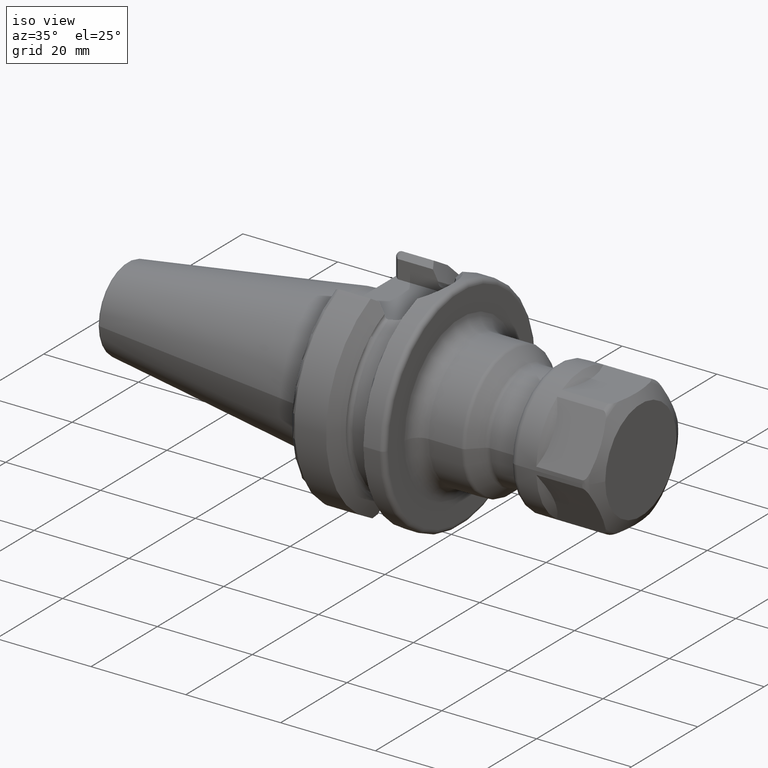
[diagram: clean part render]
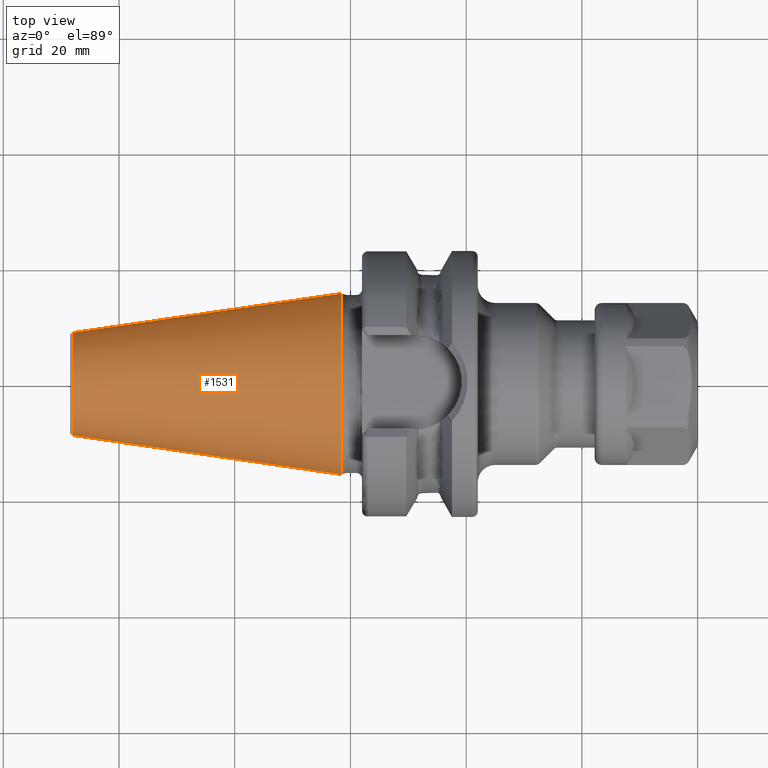
[diagram: tour spotlight — one face highlighted and labeled with its STEP entity id]
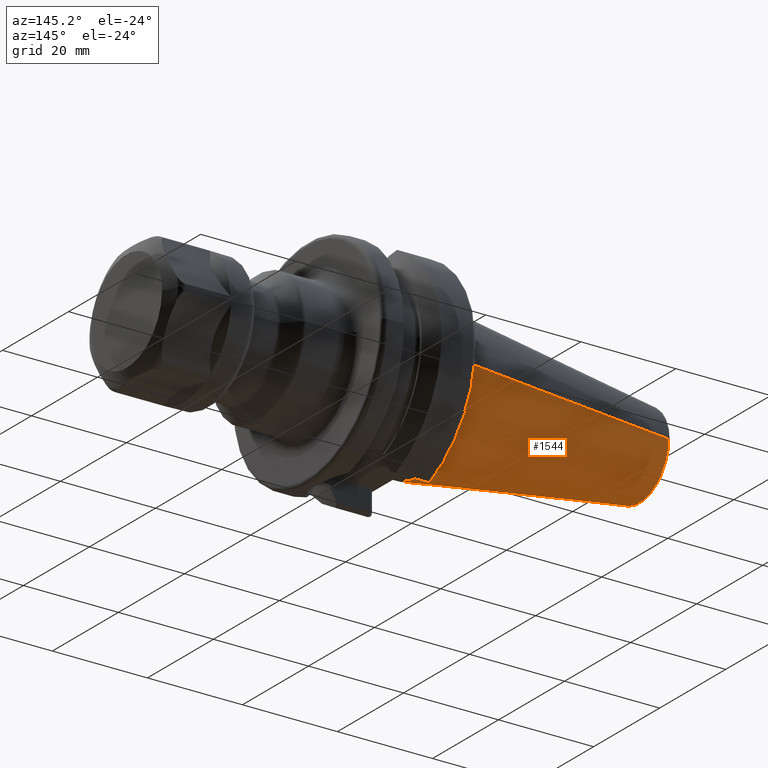
[diagram: tour spotlight — one face highlighted and labeled with its STEP entity id]
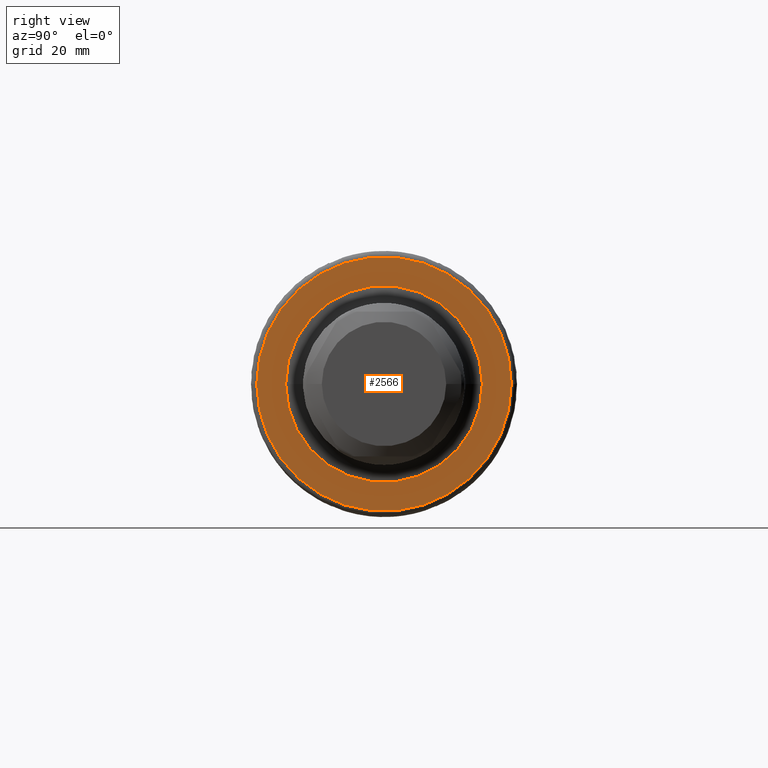
[diagram: tour spotlight — one face highlighted and labeled with its STEP entity id]
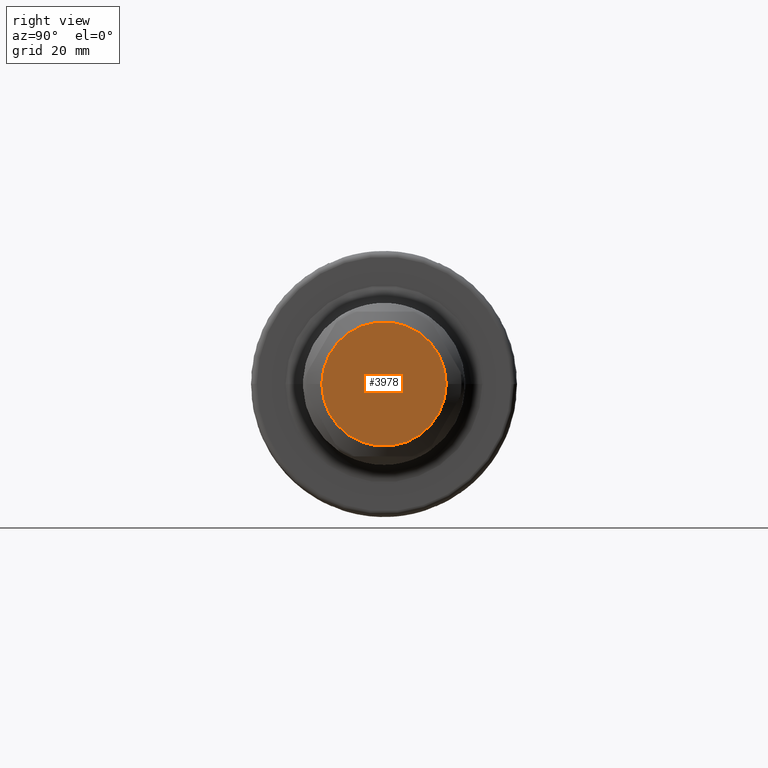
[diagram: tour spotlight — one face highlighted and labeled with its STEP entity id]
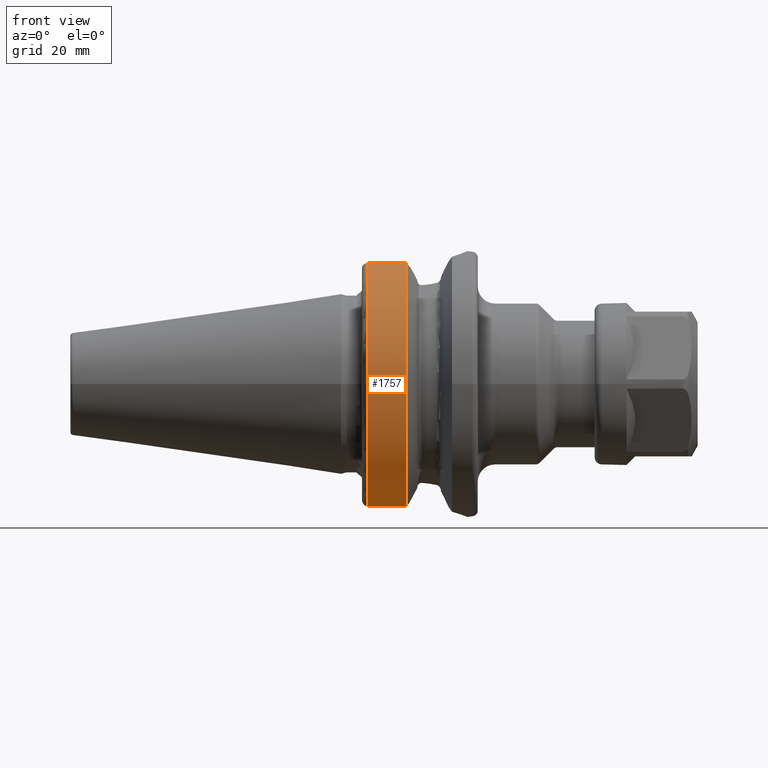
[diagram: tour spotlight — one face highlighted and labeled with its STEP entity id]
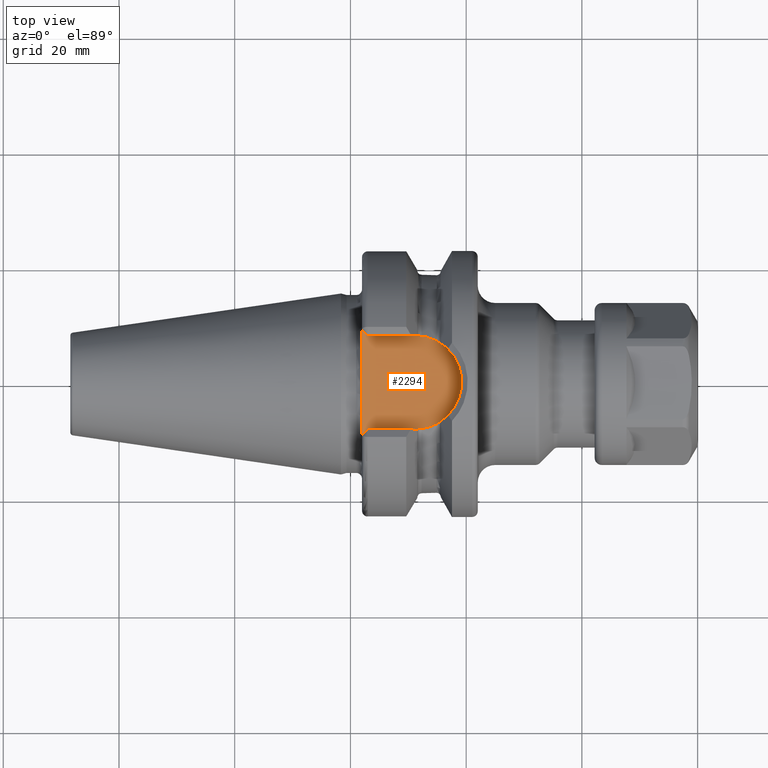
[diagram: tour spotlight — one face highlighted and labeled with its STEP entity id]
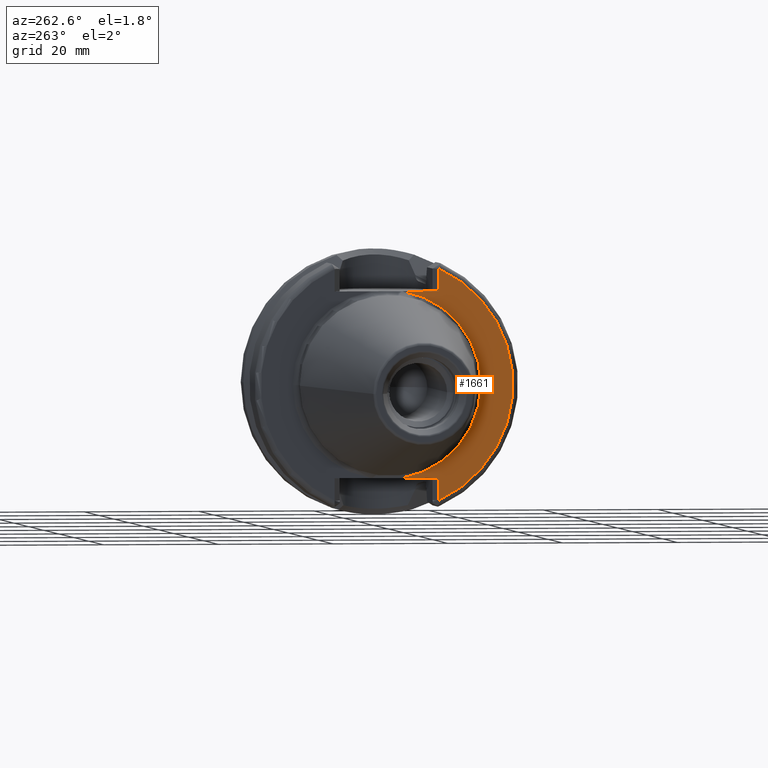
[diagram: tour spotlight — one face highlighted and labeled with its STEP entity id]
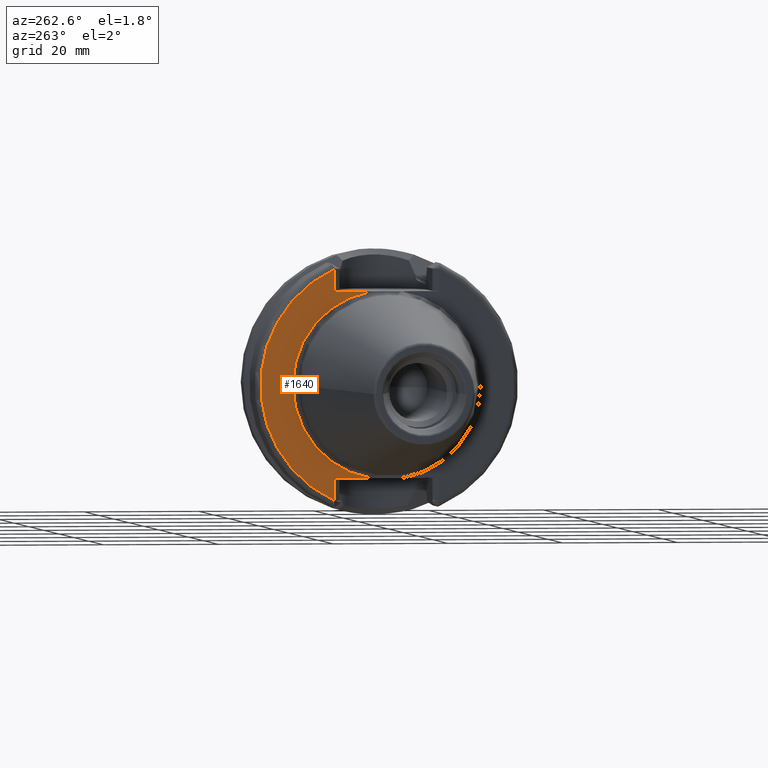
[diagram: tour spotlight — one face highlighted and labeled with its STEP entity id]
A machine part: a face-by-face anatomy tour. The part has 128 B-rep faces; the first image is the clean iso view, then the 8 largest visible faces are spotlighted one at a time (largest first), each with its STEP entity span.

Face 1 — top view, entity #1531. In plain terms, the highlighted conical surface has half-angle 8.298 deg.
Definition (entity closure, byte-faithful):
#37=CARTESIAN_POINT('',(-4.797215933459E1,0.E0,0.E0));
#38=DIRECTION('',(1.E0,0.E0,0.E0));
#39=DIRECTION('',(0.E0,1.E0,0.E0));
#40=AXIS2_PLACEMENT_3D('',#37,#38,#39);
#42=CARTESIAN_POINT('',(-1.629230650827E0,0.E0,0.E0));
#43=DIRECTION('',(1.E0,0.E0,0.E0));
#44=DIRECTION('',(0.E0,1.E0,0.E0));
#45=AXIS2_PLACEMENT_3D('',#42,#43,#44);
#47=DIRECTION('',(-9.895312636440E-1,-1.443186691705E-1,0.E0));
#48=VECTOR('',#47,4.683321324594E1);
#49=CARTESIAN_POINT('',(-1.629230650827E0,1.563738406209E1,0.E0));
#50=LINE('',#49,#48);
#51=DIRECTION('',(-9.895312636440E-1,1.443186691705E-1,0.E0));
#52=VECTOR('',#51,4.683321324594E1);
#53=CARTESIAN_POINT('',(-1.629230650827E0,-1.563738406209E1,0.E0));
#54=LINE('',#53,#52);
#1212=CARTESIAN_POINT('',(-4.797215933459E1,8.878477053461E0,0.E0));
#1214=VERTEX_POINT('',#1212);
#1216=CARTESIAN_POINT('',(-4.797215933459E1,-8.878477053461E0,0.E0));
#1218=VERTEX_POINT('',#1216);
#1427=CARTESIAN_POINT('',(-1.629230650827E0,1.563738406209E1,0.E0));
#1428=VERTEX_POINT('',#1427);
#1429=CARTESIAN_POINT('',(-1.629230650827E0,-1.563738406209E1,0.E0));
#1430=VERTEX_POINT('',#1429);
#1517=CARTESIAN_POINT('',(-2.480069499271E1,0.E0,0.E0));
#1518=DIRECTION('',(1.E0,0.E0,0.E0));
#1519=DIRECTION('',(0.E0,-1.E0,0.E0));
#1520=AXIS2_PLACEMENT_3D('',#1517,#1518,#1519);
#1521=CONICAL_SURFACE('',#1520,1.225793055778E1,8.297826828206E0);
#1523=ORIENTED_EDGE('',*,*,#1522,.F.);
#1525=ORIENTED_EDGE('',*,*,#1524,.T.);
#1527=ORIENTED_EDGE('',*,*,#1526,.T.);
#1528=ORIENTED_EDGE('',*,*,#1510,.F.);
#1529=EDGE_LOOP('',(#1523,#1525,#1527,#1528));
#1530=FACE_OUTER_BOUND('',#1529,.F.);
#1531=ADVANCED_FACE('',(#1530),#1521,.T.);
#41=CIRCLE('',#40,8.878477053461E0);
#46=CIRCLE('',#45,1.563738406209E1);
#1510=EDGE_CURVE('',#1214,#1218,#41,.T.);
#1522=EDGE_CURVE('',#1428,#1214,#50,.T.);
#1524=EDGE_CURVE('',#1428,#1430,#46,.T.);
#1526=EDGE_CURVE('',#1430,#1218,#54,.T.);

Face 2 — auxiliary view, entity #1544. In plain terms, the highlighted conical surface has half-angle 8.298 deg.
Definition (entity closure, byte-faithful):
#32=CARTESIAN_POINT('',(-4.797215933459E1,0.E0,0.E0));
#33=DIRECTION('',(-1.E0,0.E0,0.E0));
#34=DIRECTION('',(0.E0,1.E0,0.E0));
#35=AXIS2_PLACEMENT_3D('',#32,#33,#34);
#47=DIRECTION('',(-9.895312636440E-1,-1.443186691705E-1,0.E0));
#48=VECTOR('',#47,4.683321324594E1);
#49=CARTESIAN_POINT('',(-1.629230650827E0,1.563738406209E1,0.E0));
#50=LINE('',#49,#48);
#51=DIRECTION('',(-9.895312636440E-1,1.443186691705E-1,0.E0));
#52=VECTOR('',#51,4.683321324594E1);
#53=CARTESIAN_POINT('',(-1.629230650827E0,-1.563738406209E1,0.E0));
#54=LINE('',#53,#52);
#55=CARTESIAN_POINT('',(-1.629230650827E0,0.E0,0.E0));
#56=DIRECTION('',(-1.E0,0.E0,0.E0));
#57=DIRECTION('',(0.E0,1.E0,0.E0));
#58=AXIS2_PLACEMENT_3D('',#55,#56,#57);
#1212=CARTESIAN_POINT('',(-4.797215933459E1,8.878477053461E0,0.E0));
#1214=VERTEX_POINT('',#1212);
#1216=CARTESIAN_POINT('',(-4.797215933459E1,-8.878477053461E0,0.E0));
#1218=VERTEX_POINT('',#1216);
#1427=CARTESIAN_POINT('',(-1.629230650827E0,1.563738406209E1,0.E0));
#1428=VERTEX_POINT('',#1427);
#1429=CARTESIAN_POINT('',(-1.629230650827E0,-1.563738406209E1,0.E0));
#1430=VERTEX_POINT('',#1429);
#1532=CARTESIAN_POINT('',(-2.480069499271E1,0.E0,0.E0));
#1533=DIRECTION('',(1.E0,0.E0,0.E0));
#1534=DIRECTION('',(0.E0,-1.E0,0.E0));
#1535=AXIS2_PLACEMENT_3D('',#1532,#1533,#1534);
#1536=CONICAL_SURFACE('',#1535,1.225793055778E1,8.297826828206E0);
#1537=ORIENTED_EDGE('',*,*,#1522,.T.);
#1538=ORIENTED_EDGE('',*,*,#1499,.T.);
#1539=ORIENTED_EDGE('',*,*,#1526,.F.);
#1541=ORIENTED_EDGE('',*,*,#1540,.F.);
#1542=EDGE_LOOP('',(#1537,#1538,#1539,#1541));
#1543=FACE_OUTER_BOUND('',#1542,.F.);
#1544=ADVANCED_FACE('',(#1543),#1536,.T.);
#36=CIRCLE('',#35,8.878477053461E0);
#59=CIRCLE('',#58,1.563738406209E1);
#1499=EDGE_CURVE('',#1214,#1218,#36,.T.);
#1522=EDGE_CURVE('',#1428,#1214,#50,.T.);
#1526=EDGE_CURVE('',#1430,#1218,#54,.T.);
#1540=EDGE_CURVE('',#1428,#1430,#59,.T.);

Face 3 — right view, entity #2566. In plain terms, the highlighted planar face has unit normal (1, 0, 0).
Definition (entity closure, byte-faithful):
#802=CARTESIAN_POINT('',(2.2E1,0.E0,0.E0));
#803=DIRECTION('',(1.E0,0.E0,0.E0));
#804=DIRECTION('',(0.E0,1.E0,0.E0));
#805=AXIS2_PLACEMENT_3D('',#802,#803,#804);
#817=CARTESIAN_POINT('',(2.2E1,0.E0,0.E0));
#818=DIRECTION('',(-1.E0,0.E0,0.E0));
#819=DIRECTION('',(0.E0,1.E0,0.E0));
#820=AXIS2_PLACEMENT_3D('',#817,#818,#819);
#822=CARTESIAN_POINT('',(2.2E1,0.E0,0.E0));
#823=DIRECTION('',(1.E0,0.E0,0.E0));
#824=DIRECTION('',(0.E0,-1.E0,0.E0));
#825=AXIS2_PLACEMENT_3D('',#822,#823,#824);
#827=CARTESIAN_POINT('',(2.2E1,0.E0,0.E0));
#828=DIRECTION('',(1.E0,0.E0,0.E0));
#829=DIRECTION('',(0.E0,1.E0,0.E0));
#830=AXIS2_PLACEMENT_3D('',#827,#828,#829);
#1346=CARTESIAN_POINT('',(2.2E1,2.199E1,0.E0));
#1347=VERTEX_POINT('',#1346);
#1348=CARTESIAN_POINT('',(2.2E1,-2.199E1,0.E0));
#1349=VERTEX_POINT('',#1348);
#1443=CARTESIAN_POINT('',(2.2E1,-1.7E1,0.E0));
#1444=CARTESIAN_POINT('',(2.2E1,1.7E1,0.E0));
#1445=VERTEX_POINT('',#1443);
#1446=VERTEX_POINT('',#1444);
#2551=CARTESIAN_POINT('',(2.2E1,0.E0,0.E0));
#2552=DIRECTION('',(1.E0,0.E0,0.E0));
#2553=DIRECTION('',(0.E0,-1.E0,0.E0));
#2554=AXIS2_PLACEMENT_3D('',#2551,#2552,#2553);
#2555=PLANE('',#2554);
#2556=ORIENTED_EDGE('',*,*,#2546,.T.);
#2557=ORIENTED_EDGE('',*,*,#2530,.F.);
#2558=EDGE_LOOP('',(#2556,#2557));
#2559=FACE_OUTER_BOUND('',#2558,.F.);
#2561=ORIENTED_EDGE('',*,*,#2560,.T.);
#2563=ORIENTED_EDGE('',*,*,#2562,.T.);
#2564=EDGE_LOOP('',(#2561,#2563));
#2565=FACE_BOUND('',#2564,.F.);
#2566=ADVANCED_FACE('',(#2559,#2565),#2555,.T.);
#806=CIRCLE('',#805,2.199E1);
#821=CIRCLE('',#820,2.199E1);
#826=CIRCLE('',#825,1.7E1);
#831=CIRCLE('',#830,1.7E1);
#2530=EDGE_CURVE('',#1347,#1349,#806,.T.);
#2546=EDGE_CURVE('',#1347,#1349,#821,.T.);
#2560=EDGE_CURVE('',#1445,#1446,#826,.T.);
#2562=EDGE_CURVE('',#1446,#1445,#831,.T.);

Face 4 — right view, entity #3978. In plain terms, the highlighted planar face has unit normal (1, 0, 0).
Definition (entity closure, byte-faithful):
#3361=CARTESIAN_POINT('',(1.78E1,0.E0,0.E0));
#3362=DIRECTION('',(-1.E0,0.E0,0.E0));
#3363=DIRECTION('',(0.E0,1.E0,0.E0));
#3364=AXIS2_PLACEMENT_3D('',#3361,#3362,#3363);
#3727=CARTESIAN_POINT('',(1.78E1,0.E0,0.E0));
#3728=DIRECTION('',(1.E0,0.E0,0.E0));
#3729=DIRECTION('',(0.E0,1.E0,0.E0));
#3730=AXIS2_PLACEMENT_3D('',#3727,#3728,#3729);
#3894=CARTESIAN_POINT('',(1.78E1,1.075E1,0.E0));
#3895=CARTESIAN_POINT('',(1.78E1,-1.075E1,0.E0));
#3896=VERTEX_POINT('',#3894);
#3897=VERTEX_POINT('',#3895);
#3967=CARTESIAN_POINT('',(1.78E1,0.E0,0.E0));
#3968=DIRECTION('',(1.E0,0.E0,0.E0));
#3969=DIRECTION('',(0.E0,-1.E0,0.E0));
#3970=AXIS2_PLACEMENT_3D('',#3967,#3968,#3969);
#3971=PLANE('',#3970);
#3973=ORIENTED_EDGE('',*,*,#3972,.T.);
#3975=ORIENTED_EDGE('',*,*,#3974,.F.);
#3976=EDGE_LOOP('',(#3973,#3975));
#3977=FACE_OUTER_BOUND('',#3976,.F.);
#3978=ADVANCED_FACE('',(#3977),#3971,.T.);
#3365=CIRCLE('',#3364,1.075E1);
#3731=CIRCLE('',#3730,1.075E1);
#3972=EDGE_CURVE('',#3896,#3897,#3365,.T.);
#3974=EDGE_CURVE('',#3896,#3897,#3731,.T.);

Face 5 — front view, entity #1757. In plain terms, the highlighted cylindrical surface (partial cylindrical patch) has radius 22.99 mm, axis along (1, 0, 0).
Definition (entity closure, byte-faithful):
#190=CARTESIAN_POINT('',(9.650924158743E0,0.E0,0.E0));
#191=DIRECTION('',(1.E0,0.E0,0.E0));
#192=DIRECTION('',(0.E0,-4.135970895862E-1,9.104600197075E-1));
#193=AXIS2_PLACEMENT_3D('',#190,#191,#192);
#195=DIRECTION('',(9.999999999953E-1,1.691137854943E-6,-2.559578267209E-6));
#196=VECTOR('',#195,6.650924186073E0);
#197=CARTESIAN_POINT('',(2.999999972701E0,-9.014923952472E0,-2.114877606078E1));
#198=LINE('',#197,#196);
#199=CARTESIAN_POINT('',(3.E0,0.E0,0.E0));
#200=DIRECTION('',(-1.E0,0.E0,0.E0));
#201=DIRECTION('',(0.E0,-3.921232146517E-1,-9.199127048428E-1));
#202=AXIS2_PLACEMENT_3D('',#199,#200,#201);
#204=DIRECTION('',(-9.999999999877E-1,2.689360368840E-6,4.174830096868E-6));
#205=VECTOR('',#204,6.650924175867E0);
#206=CARTESIAN_POINT('',(9.650924158743E0,-9.508597089586E0,2.093147585308E1));
#207=LINE('',#206,#205);
#612=CARTESIAN_POINT('',(2.999999972701E0,-9.014923952472E0,-2.114877606078E1));
#1378=CARTESIAN_POINT('',(9.650924158743E0,-9.508597089586E0,2.093147585308E1));
#1379=CARTESIAN_POINT('',(9.650924158743E0,-9.014912704843E0,
-2.114879308434E1));
#1380=VERTEX_POINT('',#1378);
#1381=VERTEX_POINT('',#1379);
#1394=CARTESIAN_POINT('',(3.E0,-9.508621994147E0,2.093146453960E1));
#1395=VERTEX_POINT('',#1394);
#1416=VERTEX_POINT('',#612);
#1743=CARTESIAN_POINT('',(-5.192E1,0.E0,0.E0));
#1744=DIRECTION('',(1.E0,0.E0,0.E0));
#1745=DIRECTION('',(0.E0,-1.E0,0.E0));
#1746=AXIS2_PLACEMENT_3D('',#1743,#1744,#1745);
#1747=CYLINDRICAL_SURFACE('',#1746,2.299E1);
#1748=ORIENTED_EDGE('',*,*,#1732,.T.);
#1750=ORIENTED_EDGE('',*,*,#1749,.F.);
#1752=ORIENTED_EDGE('',*,*,#1751,.T.);
#1754=ORIENTED_EDGE('',*,*,#1753,.F.);
#1755=EDGE_LOOP('',(#1748,#1750,#1752,#1754));
#1756=FACE_OUTER_BOUND('',#1755,.F.);
#1757=ADVANCED_FACE('',(#1756),#1747,.T.);
#194=CIRCLE('',#193,2.299E1);
#203=CIRCLE('',#202,2.299E1);
#1732=EDGE_CURVE('',#1380,#1381,#194,.T.);
#1749=EDGE_CURVE('',#1416,#1381,#198,.T.);
#1751=EDGE_CURVE('',#1416,#1395,#203,.T.);
#1753=EDGE_CURVE('',#1380,#1395,#207,.T.);

Face 6 — top view, entity #2294. In plain terms, the highlighted planar face has unit normal (0, 0, 1).
Definition (entity closure, byte-faithful):
#666=DIRECTION('',(1.E0,0.E0,0.E0));
#667=VECTOR('',#666,8.155E0);
#668=CARTESIAN_POINT('',(3.E0,-8.095E0,1.615E1));
#669=LINE('',#668,#667);
#670=DIRECTION('',(0.E0,1.E0,0.E0));
#671=VECTOR('',#670,6.389796680469E0);
#672=CARTESIAN_POINT('',(2.E0,-9.095E0,1.615E1));
#673=LINE('',#672,#671);
#674=DIRECTION('',(0.E0,1.E0,0.E0));
#675=VECTOR('',#674,6.389796680469E0);
#676=CARTESIAN_POINT('',(2.E0,2.705203319531E0,1.615E1));
#677=LINE('',#676,#675);
#678=DIRECTION('',(-1.E0,0.E0,0.E0));
#679=VECTOR('',#678,8.155E0);
#680=CARTESIAN_POINT('',(1.1155E1,8.095E0,1.615E1));
#681=LINE('',#680,#679);
#682=CARTESIAN_POINT('',(1.1155E1,0.E0,1.615E1));
#683=DIRECTION('',(0.E0,0.E0,1.E0));
#684=DIRECTION('',(0.E0,-1.E0,0.E0));
#685=AXIS2_PLACEMENT_3D('',#682,#683,#684);
#691=DIRECTION('',(7.071067811865E-1,7.071067811865E-1,0.E0));
#692=VECTOR('',#691,1.414213562373E0);
#693=CARTESIAN_POINT('',(2.E0,-9.095E0,1.615E1));
#694=LINE('',#693,#692);
#700=CARTESIAN_POINT('',(2.E0,-2.705203319531E0,1.615E1));
#701=CARTESIAN_POINT('',(2.E0,-2.447526606637E0,1.615E1));
#702=CARTESIAN_POINT('',(1.994666808080E0,-1.932209003238E0,1.615E1));
#703=CARTESIAN_POINT('',(1.982373677751E0,-1.159353659083E0,1.615E1));
#704=CARTESIAN_POINT('',(1.974023153496E0,-3.864772813160E-1,1.615E1));
#705=CARTESIAN_POINT('',(1.974022947076E0,3.864455623798E-1,1.615E1));
#706=CARTESIAN_POINT('',(1.982373315251E0,1.159330607264E0,1.615E1));
#707=CARTESIAN_POINT('',(1.994666672292E0,1.932198796230E0,1.615E1));
#708=CARTESIAN_POINT('',(2.E0,2.447523240700E0,1.615E1));
#709=CARTESIAN_POINT('',(2.E0,2.705203319531E0,1.615E1));
#716=DIRECTION('',(-7.071067811865E-1,7.071067811865E-1,0.E0));
#717=VECTOR('',#716,1.414213562373E0);
#718=CARTESIAN_POINT('',(3.E0,8.095E0,1.615E1));
#719=LINE('',#718,#717);
#1350=CARTESIAN_POINT('',(1.1155E1,-8.095E0,1.615E1));
#1351=CARTESIAN_POINT('',(1.1155E1,8.095E0,1.615E1));
#1352=VERTEX_POINT('',#1350);
#1353=VERTEX_POINT('',#1351);
#1354=CARTESIAN_POINT('',(2.E0,2.705203319531E0,1.615E1));
#1355=VERTEX_POINT('',#1354);
#1356=CARTESIAN_POINT('',(2.E0,-2.705203319531E0,1.615E1));
#1357=VERTEX_POINT('',#1356);
#1387=CARTESIAN_POINT('',(3.E0,-8.095E0,1.615E1));
#1389=VERTEX_POINT('',#1387);
#1391=CARTESIAN_POINT('',(2.E0,-9.095E0,1.615E1));
#1393=VERTEX_POINT('',#1391);
#1400=CARTESIAN_POINT('',(2.E0,9.095E0,1.615E1));
#1401=VERTEX_POINT('',#1400);
#1402=CARTESIAN_POINT('',(3.E0,8.095E0,1.615E1));
#1404=VERTEX_POINT('',#1402);
#2276=CARTESIAN_POINT('',(0.E0,0.E0,1.615E1));
#2277=DIRECTION('',(0.E0,0.E0,1.E0));
#2278=DIRECTION('',(1.E0,0.E0,0.E0));
#2279=AXIS2_PLACEMENT_3D('',#2276,#2277,#2278);
#2280=PLANE('',#2279);
#2281=ORIENTED_EDGE('',*,*,#2047,.F.);
#2283=ORIENTED_EDGE('',*,*,#2282,.F.);
#2284=ORIENTED_EDGE('',*,*,#1653,.T.);
#2286=ORIENTED_EDGE('',*,*,#2285,.T.);
#2287=ORIENTED_EDGE('',*,*,#1631,.T.);
#2289=ORIENTED_EDGE('',*,*,#2288,.F.);
#2290=ORIENTED_EDGE('',*,*,#2268,.F.);
#2291=ORIENTED_EDGE('',*,*,#2016,.F.);
#2292=EDGE_LOOP('',(#2281,#2283,#2284,#2286,#2287,#2289,#2290,#2291));
#2293=FACE_OUTER_BOUND('',#2292,.F.);
#2294=ADVANCED_FACE('',(#2293),#2280,.T.);
#686=CIRCLE('',#685,8.095E0);
#710=B_SPLINE_CURVE_WITH_KNOTS('',3,(#700,#701,#702,#703,#704,#705,#706,#707,
#708,#709),.UNSPECIFIED.,.F.,.F.,(4,1,1,1,1,1,1,4),(0.E0,1.428571428571E-1,
2.857142857143E-1,4.285714285714E-1,5.714285714286E-1,7.142857142857E-1,
8.571428571429E-1,1.E0),.UNSPECIFIED.);
#1631=EDGE_CURVE('',#1355,#1401,#677,.T.);
#1653=EDGE_CURVE('',#1393,#1357,#673,.T.);
#2016=EDGE_CURVE('',#1352,#1353,#686,.T.);
#2047=EDGE_CURVE('',#1389,#1352,#669,.T.);
#2268=EDGE_CURVE('',#1353,#1404,#681,.T.);
#2282=EDGE_CURVE('',#1393,#1389,#694,.T.);
#2285=EDGE_CURVE('',#1357,#1355,#710,.T.);
#2288=EDGE_CURVE('',#1404,#1401,#719,.T.);

Face 7 — auxiliary view, entity #1661. In plain terms, the highlighted planar face has unit normal (1, 0, 0).
Definition (entity closure, byte-faithful):
#111=CARTESIAN_POINT('',(2.E0,0.E0,0.E0));
#112=DIRECTION('',(-1.E0,0.E0,0.E0));
#113=DIRECTION('',(0.E0,-1.652032561545E-1,-9.862595419847E-1));
#114=AXIS2_PLACEMENT_3D('',#111,#112,#113);
#135=DIRECTION('',(-4.744939476094E-6,4.745345850988E-6,-9.999999999775E-1));
#136=VECTOR('',#135,3.871014231904E0);
#137=CARTESIAN_POINT('',(2.E0,-9.095E0,-1.615E1));
#138=LINE('',#137,#136);
#139=DIRECTION('',(7.287242153305E-6,-7.289057608771E-6,-9.999999999469E-1));
#140=VECTOR('',#139,3.871026255551E0);
#141=CARTESIAN_POINT('',(1.999971790894E0,-9.094971783867E0,2.002102625535E1));
#142=LINE('',#141,#140);
#603=CARTESIAN_POINT('',(1.999981632272E0,-9.094981630699E0,-2.002101423182E1));
#614=CARTESIAN_POINT('',(2.E0,0.E0,0.E0));
#615=DIRECTION('',(-1.E0,0.E0,0.E0));
#616=DIRECTION('',(0.E0,-4.135972017393E-1,-9.104599687594E-1));
#617=AXIS2_PLACEMENT_3D('',#614,#615,#616);
#670=DIRECTION('',(0.E0,1.E0,0.E0));
#671=VECTOR('',#670,6.389796680469E0);
#672=CARTESIAN_POINT('',(2.E0,-9.095E0,1.615E1));
#673=LINE('',#672,#671);
#711=CARTESIAN_POINT('',(2.E0,0.E0,0.E0));
#712=DIRECTION('',(1.E0,0.E0,0.E0));
#713=DIRECTION('',(0.E0,-1.652032561545E-1,9.862595419847E-1));
#714=AXIS2_PLACEMENT_3D('',#711,#712,#713);
#736=DIRECTION('',(0.E0,-1.E0,0.E0));
#737=VECTOR('',#736,6.389796680469E0);
#738=CARTESIAN_POINT('',(2.E0,-2.705203319531E0,-1.615E1));
#739=LINE('',#738,#737);
#1290=CARTESIAN_POINT('',(2.E0,-1.6375E1,0.E0));
#1292=VERTEX_POINT('',#1290);
#1356=CARTESIAN_POINT('',(2.E0,-2.705203319531E0,1.615E1));
#1357=VERTEX_POINT('',#1356);
#1364=CARTESIAN_POINT('',(2.E0,-2.705203319531E0,-1.615E1));
#1365=VERTEX_POINT('',#1364);
#1390=CARTESIAN_POINT('',(1.999971790894E0,-9.094971783867E0,2.002102625535E1));
#1391=CARTESIAN_POINT('',(2.E0,-9.095E0,1.615E1));
#1392=VERTEX_POINT('',#1390);
#1393=VERTEX_POINT('',#1391);
#1415=VERTEX_POINT('',#603);
#1417=CARTESIAN_POINT('',(2.E0,-9.095E0,-1.615E1));
#1418=VERTEX_POINT('',#1417);
#1641=CARTESIAN_POINT('',(2.E0,0.E0,0.E0));
#1642=DIRECTION('',(1.E0,0.E0,0.E0));
#1643=DIRECTION('',(0.E0,-1.E0,0.E0));
#1644=AXIS2_PLACEMENT_3D('',#1641,#1642,#1643);
#1645=PLANE('',#1644);
#1647=ORIENTED_EDGE('',*,*,#1646,.F.);
#1649=ORIENTED_EDGE('',*,*,#1648,.F.);
#1650=ORIENTED_EDGE('',*,*,#1613,.T.);
#1652=ORIENTED_EDGE('',*,*,#1651,.F.);
#1654=ORIENTED_EDGE('',*,*,#1653,.F.);
#1656=ORIENTED_EDGE('',*,*,#1655,.F.);
#1658=ORIENTED_EDGE('',*,*,#1657,.F.);
#1659=EDGE_LOOP('',(#1647,#1649,#1650,#1652,#1654,#1656,#1658));
#1660=FACE_OUTER_BOUND('',#1659,.F.);
#1661=ADVANCED_FACE('',(#1660),#1645,.F.);
#115=CIRCLE('',#114,1.6375E1);
#618=CIRCLE('',#617,2.199E1);
#715=CIRCLE('',#714,1.6375E1);
#1613=EDGE_CURVE('',#1365,#1292,#115,.T.);
#1646=EDGE_CURVE('',#1418,#1415,#138,.T.);
#1648=EDGE_CURVE('',#1365,#1418,#739,.T.);
#1651=EDGE_CURVE('',#1357,#1292,#715,.T.);
#1653=EDGE_CURVE('',#1393,#1357,#673,.T.);
#1655=EDGE_CURVE('',#1392,#1393,#142,.T.);
#1657=EDGE_CURVE('',#1415,#1392,#618,.T.);

Face 8 — auxiliary view, entity #1640. In plain terms, the highlighted planar face has unit normal (1, 0, 0).
Definition (entity closure, byte-faithful):
#96=CARTESIAN_POINT('',(2.E0,0.E0,0.E0));
#97=DIRECTION('',(-1.E0,0.E0,0.E0));
#98=DIRECTION('',(0.E0,1.E0,0.E0));
#99=AXIS2_PLACEMENT_3D('',#96,#97,#98);
#127=DIRECTION('',(4.744939476517E-6,4.745345851296E-6,9.999999999775E-1));
#128=VECTOR('',#127,3.871014232028E0);
#129=CARTESIAN_POINT('',(1.999981632272E0,9.094981630699E0,-2.002101423194E1));
#130=LINE('',#129,#128);
#131=DIRECTION('',(-7.287242154960E-6,-7.289057609279E-6,9.999999999469E-1));
#132=VECTOR('',#131,3.871026254550E0);
#133=CARTESIAN_POINT('',(2.E0,9.095E0,1.615E1));
#134=LINE('',#133,#132);
#598=CARTESIAN_POINT('',(2.E0,0.E0,0.E0));
#599=DIRECTION('',(-1.E0,0.E0,0.E0));
#600=DIRECTION('',(0.E0,4.135972556779E-1,9.104599442566E-1));
#601=AXIS2_PLACEMENT_3D('',#598,#599,#600);
#674=DIRECTION('',(0.E0,1.E0,0.E0));
#675=VECTOR('',#674,6.389796680469E0);
#676=CARTESIAN_POINT('',(2.E0,2.705203319531E0,1.615E1));
#677=LINE('',#676,#675);
#695=CARTESIAN_POINT('',(2.E0,0.E0,0.E0));
#696=DIRECTION('',(1.E0,0.E0,0.E0));
#697=DIRECTION('',(0.E0,1.E0,0.E0));
#698=AXIS2_PLACEMENT_3D('',#695,#696,#697);
#732=DIRECTION('',(0.E0,-1.E0,0.E0));
#733=VECTOR('',#732,6.389796680469E0);
#734=CARTESIAN_POINT('',(2.E0,9.095E0,-1.615E1));
#735=LINE('',#734,#733);
#1284=CARTESIAN_POINT('',(2.E0,1.6375E1,0.E0));
#1286=VERTEX_POINT('',#1284);
#1354=CARTESIAN_POINT('',(2.E0,2.705203319531E0,1.615E1));
#1355=VERTEX_POINT('',#1354);
#1362=CARTESIAN_POINT('',(2.E0,2.705203319531E0,-1.615E1));
#1363=VERTEX_POINT('',#1362);
#1396=CARTESIAN_POINT('',(2.E0,9.095023821277E0,2.002100501198E1));
#1398=VERTEX_POINT('',#1396);
#1400=CARTESIAN_POINT('',(2.E0,9.095E0,1.615E1));
#1401=VERTEX_POINT('',#1400);
#1410=CARTESIAN_POINT('',(1.999981632272E0,9.094981630699E0,-2.002101423194E1));
#1411=CARTESIAN_POINT('',(2.E0,9.095E0,-1.615E1));
#1412=VERTEX_POINT('',#1410);
#1413=VERTEX_POINT('',#1411);
#1620=CARTESIAN_POINT('',(2.E0,0.E0,0.E0));
#1621=DIRECTION('',(1.E0,0.E0,0.E0));
#1622=DIRECTION('',(0.E0,-1.E0,0.E0));
#1623=AXIS2_PLACEMENT_3D('',#1620,#1621,#1622);
#1624=PLANE('',#1623);
#1626=ORIENTED_EDGE('',*,*,#1625,.F.);
#1628=ORIENTED_EDGE('',*,*,#1627,.F.);
#1630=ORIENTED_EDGE('',*,*,#1629,.F.);
#1632=ORIENTED_EDGE('',*,*,#1631,.F.);
#1634=ORIENTED_EDGE('',*,*,#1633,.F.);
#1635=ORIENTED_EDGE('',*,*,#1606,.T.);
#1637=ORIENTED_EDGE('',*,*,#1636,.F.);
#1638=EDGE_LOOP('',(#1626,#1628,#1630,#1632,#1634,#1635,#1637));
#1639=FACE_OUTER_BOUND('',#1638,.F.);
#1640=ADVANCED_FACE('',(#1639),#1624,.F.);
#100=CIRCLE('',#99,1.6375E1);
#602=CIRCLE('',#601,2.199E1);
#699=CIRCLE('',#698,1.6375E1);
#1606=EDGE_CURVE('',#1286,#1363,#100,.T.);
#1625=EDGE_CURVE('',#1412,#1413,#130,.T.);
#1627=EDGE_CURVE('',#1398,#1412,#602,.T.);
#1629=EDGE_CURVE('',#1401,#1398,#134,.T.);
#1631=EDGE_CURVE('',#1355,#1401,#677,.T.);
#1633=EDGE_CURVE('',#1286,#1355,#699,.T.);
#1636=EDGE_CURVE('',#1413,#1363,#735,.T.);